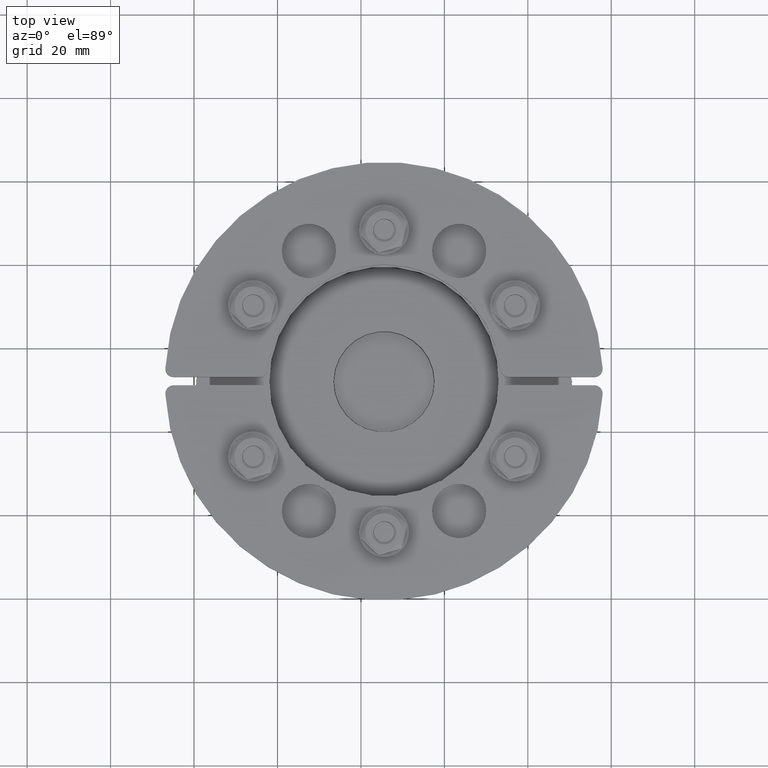
[diagram: clean part render]
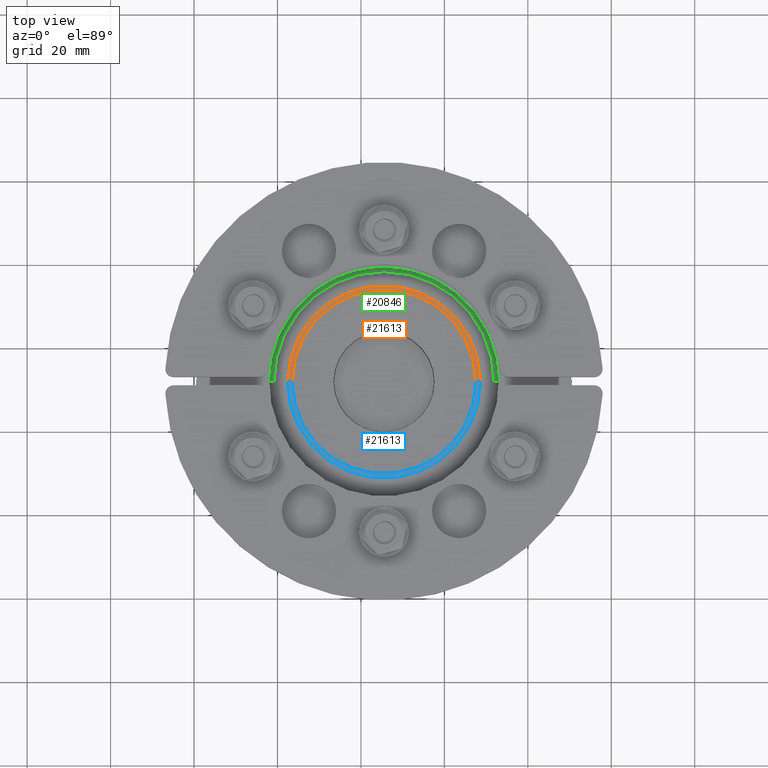
[diagram: same view with three faces highlighted in distinct colors, each labeled with its STEP entity id]
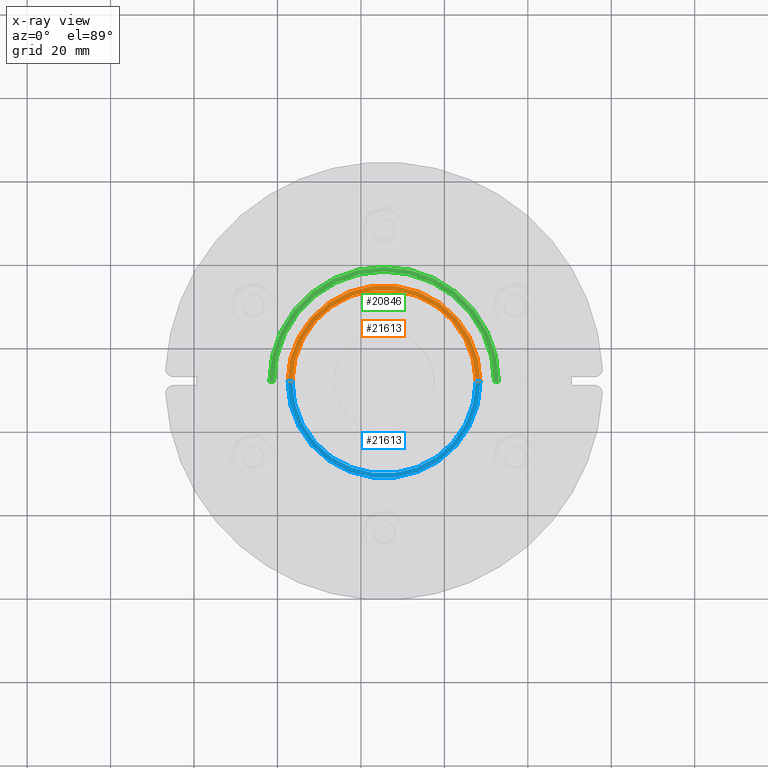
[diagram: x-ray of the same camera — body ghosted, the three highlighted faces saturated]
A machine part, top view with three faces highlighted in distinct colors.
The next image is the same camera in x-ray (body ghosted, the three faces saturated) — at least one of them is partly hidden behind the body in this view.
Their STEP definitions:

[orange] entity #21613 — the highlighted planar face has unit normal (-0, 0, -1).
#21467=CARTESIAN_POINT('',(23.100000000000001,0.0,0.0));
#21468=VERTEX_POINT('',#21467);
#21469=CARTESIAN_POINT('',(-23.100000000000001,0.0,0.0));
#21470=VERTEX_POINT('',#21469);
#21471=CARTESIAN_POINT('',(0.0,0.0,0.0));
#21472=DIRECTION('',(0.0,0.0,1.0));
#21473=DIRECTION('',(1.0,0.0,0.0));
#21474=AXIS2_PLACEMENT_3D('',#21471,#21472,#21473);
#21475=CIRCLE('',#21474,23.100000000000001);
#21476=EDGE_CURVE('',#21468,#21470,#21475,.T.);
#21509=CARTESIAN_POINT('',(22.0,0.0,0.0));
#21510=VERTEX_POINT('',#21509);
#21511=CARTESIAN_POINT('',(22.000000000000004,0.0,0.0));
#21512=DIRECTION('',(1.0,0.0,0.0));
#21513=VECTOR('',#21512,1.099999999999998);
#21514=LINE('',#21511,#21513);
#21515=EDGE_CURVE('',#21510,#21468,#21514,.T.);
#21540=CARTESIAN_POINT('',(-22.0,0.0,0.0));
#21541=VERTEX_POINT('',#21540);
#21542=CARTESIAN_POINT('',(0.0,0.0,0.0));
#21543=DIRECTION('',(0.0,0.0,-1.0));
#21544=DIRECTION('',(-1.0,0.0,0.0));
#21545=AXIS2_PLACEMENT_3D('',#21542,#21543,#21544);
#21546=CIRCLE('',#21545,22.0);
#21547=EDGE_CURVE('',#21541,#21510,#21546,.T.);
#21573=CARTESIAN_POINT('',(-23.100000000000001,0.0,0.0));
#21574=DIRECTION('',(1.0,0.0,0.0));
#21575=VECTOR('',#21574,1.100000000000001);
#21576=LINE('',#21573,#21575);
#21577=EDGE_CURVE('',#21470,#21541,#21576,.T.);
#21602=CARTESIAN_POINT('',(-8.954164E-017,14.073078940066603,0.0));
#21603=DIRECTION('',(0.0,0.0,1.0));
#21604=DIRECTION('',(1.0,0.0,0.0));
#21605=AXIS2_PLACEMENT_3D('',#21602,#21603,#21604);
#21606=PLANE('',#21605);
#21607=ORIENTED_EDGE('',*,*,#21577,.F.);
#21608=ORIENTED_EDGE('',*,*,#21476,.F.);
#21609=ORIENTED_EDGE('',*,*,#21515,.F.);
#21610=ORIENTED_EDGE('',*,*,#21547,.F.);
#21611=EDGE_LOOP('',(#21607,#21608,#21609,#21610));
#21612=FACE_OUTER_BOUND('',#21611,.T.);
#21613=ADVANCED_FACE('',(#21612),#21606,.F.);

[blue] entity #21613 — the highlighted planar face has unit normal (-0, 0, -1).
#21467=CARTESIAN_POINT('',(23.100000000000001,0.0,0.0));
#21468=VERTEX_POINT('',#21467);
#21469=CARTESIAN_POINT('',(-23.100000000000001,0.0,0.0));
#21470=VERTEX_POINT('',#21469);
#21471=CARTESIAN_POINT('',(0.0,0.0,0.0));
#21472=DIRECTION('',(0.0,0.0,1.0));
#21473=DIRECTION('',(1.0,0.0,0.0));
#21474=AXIS2_PLACEMENT_3D('',#21471,#21472,#21473);
#21475=CIRCLE('',#21474,23.100000000000001);
#21476=EDGE_CURVE('',#21468,#21470,#21475,.T.);
#21509=CARTESIAN_POINT('',(22.0,0.0,0.0));
#21510=VERTEX_POINT('',#21509);
#21511=CARTESIAN_POINT('',(22.000000000000004,0.0,0.0));
#21512=DIRECTION('',(1.0,0.0,0.0));
#21513=VECTOR('',#21512,1.099999999999998);
#21514=LINE('',#21511,#21513);
#21515=EDGE_CURVE('',#21510,#21468,#21514,.T.);
#21540=CARTESIAN_POINT('',(-22.0,0.0,0.0));
#21541=VERTEX_POINT('',#21540);
#21542=CARTESIAN_POINT('',(0.0,0.0,0.0));
#21543=DIRECTION('',(0.0,0.0,-1.0));
#21544=DIRECTION('',(-1.0,0.0,0.0));
#21545=AXIS2_PLACEMENT_3D('',#21542,#21543,#21544);
#21546=CIRCLE('',#21545,22.0);
#21547=EDGE_CURVE('',#21541,#21510,#21546,.T.);
#21573=CARTESIAN_POINT('',(-23.100000000000001,0.0,0.0));
#21574=DIRECTION('',(1.0,0.0,0.0));
#21575=VECTOR('',#21574,1.100000000000001);
#21576=LINE('',#21573,#21575);
#21577=EDGE_CURVE('',#21470,#21541,#21576,.T.);
#21602=CARTESIAN_POINT('',(-8.954164E-017,14.073078940066603,0.0));
#21603=DIRECTION('',(0.0,0.0,1.0));
#21604=DIRECTION('',(1.0,0.0,0.0));
#21605=AXIS2_PLACEMENT_3D('',#21602,#21603,#21604);
#21606=PLANE('',#21605);
#21607=ORIENTED_EDGE('',*,*,#21577,.F.);
#21608=ORIENTED_EDGE('',*,*,#21476,.F.);
#21609=ORIENTED_EDGE('',*,*,#21515,.F.);
#21610=ORIENTED_EDGE('',*,*,#21547,.F.);
#21611=EDGE_LOOP('',(#21607,#21608,#21609,#21610));
#21612=FACE_OUTER_BOUND('',#21611,.T.);
#21613=ADVANCED_FACE('',(#21612),#21606,.F.);

[green] entity #20846 — the highlighted planar face has unit normal (-0, 0, -1).
#20700=CARTESIAN_POINT('',(27.5,0.0,0.0));
#20701=VERTEX_POINT('',#20700);
#20702=CARTESIAN_POINT('',(-27.5,0.0,0.0));
#20703=VERTEX_POINT('',#20702);
#20704=CARTESIAN_POINT('',(0.0,0.0,0.0));
#20705=DIRECTION('',(0.0,0.0,1.0));
#20706=DIRECTION('',(1.0,0.0,0.0));
#20707=AXIS2_PLACEMENT_3D('',#20704,#20705,#20706);
#20708=CIRCLE('',#20707,27.5);
#20709=EDGE_CURVE('',#20701,#20703,#20708,.T.);
#20742=CARTESIAN_POINT('',(26.400000000000002,0.0,0.0));
#20743=VERTEX_POINT('',#20742);
#20744=CARTESIAN_POINT('',(26.400000000000002,0.0,0.0));
#20745=DIRECTION('',(1.0,0.0,0.0));
#20746=VECTOR('',#20745,1.099999999999998);
#20747=LINE('',#20744,#20746);
#20748=EDGE_CURVE('',#20743,#20701,#20747,.T.);
#20773=CARTESIAN_POINT('',(-26.400000000000002,0.0,0.0));
#20774=VERTEX_POINT('',#20773);
#20775=CARTESIAN_POINT('',(0.0,0.0,0.0));
#20776=DIRECTION('',(0.0,0.0,-1.0));
#20777=DIRECTION('',(-1.0,0.0,0.0));
#20778=AXIS2_PLACEMENT_3D('',#20775,#20776,#20777);
#20779=CIRCLE('',#20778,26.400000000000002);
#20780=EDGE_CURVE('',#20774,#20743,#20779,.T.);
#20806=CARTESIAN_POINT('',(-27.5,0.0,0.0));
#20807=DIRECTION('',(1.0,0.0,0.0));
#20808=VECTOR('',#20807,1.099999999999998);
#20809=LINE('',#20806,#20808);
#20810=EDGE_CURVE('',#20703,#20774,#20809,.T.);
#20835=CARTESIAN_POINT('',(5.380376E-016,16.871918949539751,0.0));
#20836=DIRECTION('',(0.0,0.0,1.0));
#20837=DIRECTION('',(1.0,0.0,0.0));
#20838=AXIS2_PLACEMENT_3D('',#20835,#20836,#20837);
#20839=PLANE('',#20838);
#20840=ORIENTED_EDGE('',*,*,#20810,.F.);
#20841=ORIENTED_EDGE('',*,*,#20709,.F.);
#20842=ORIENTED_EDGE('',*,*,#20748,.F.);
#20843=ORIENTED_EDGE('',*,*,#20780,.F.);
#20844=EDGE_LOOP('',(#20840,#20841,#20842,#20843));
#20845=FACE_OUTER_BOUND('',#20844,.T.);
#20846=ADVANCED_FACE('',(#20845),#20839,.F.);